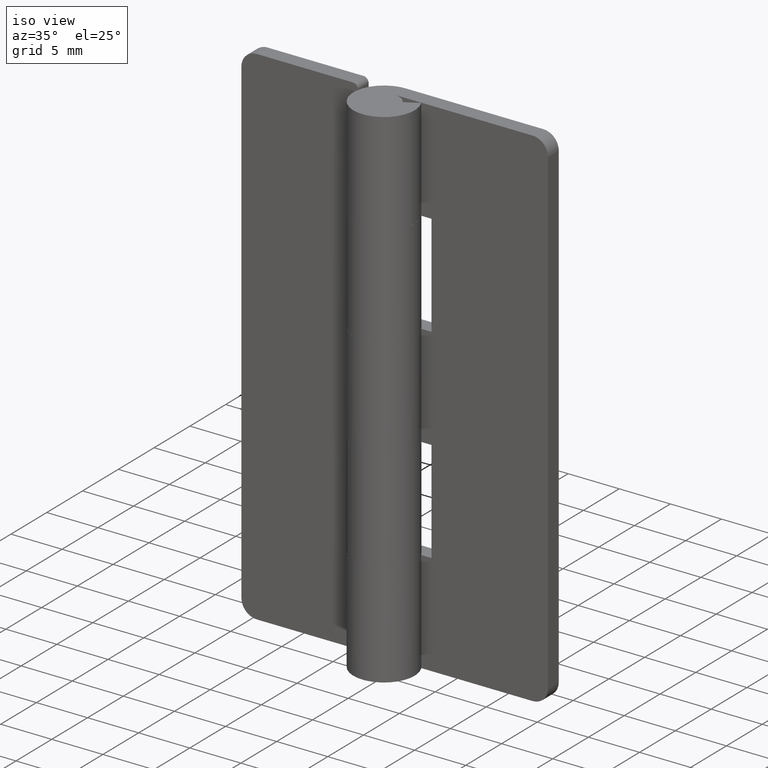
[diagram: clean part render]
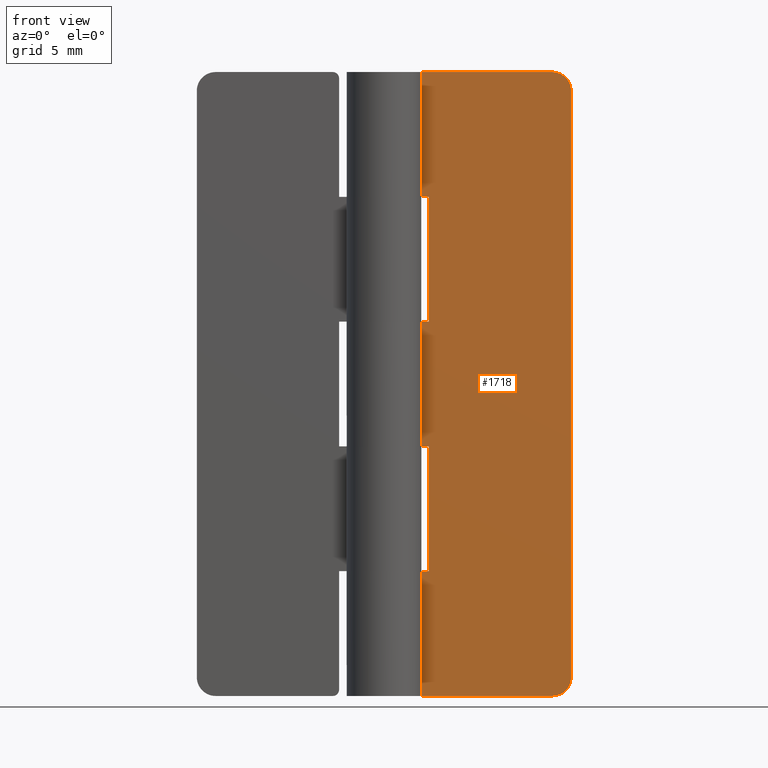
[diagram: tour spotlight — one face highlighted and labeled with its STEP entity id]
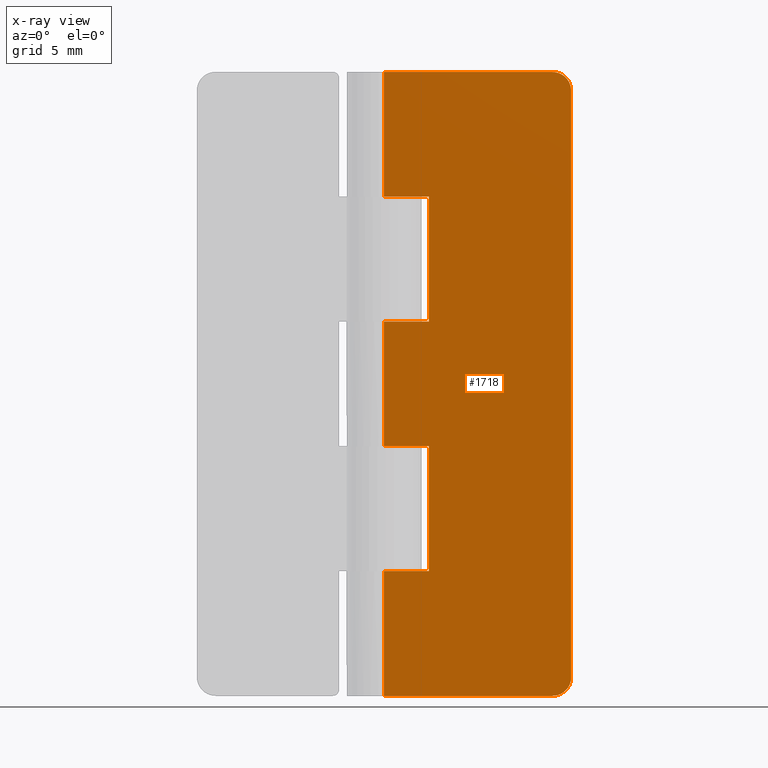
[diagram: x-ray of the same camera — body ghosted, this tour face saturated]
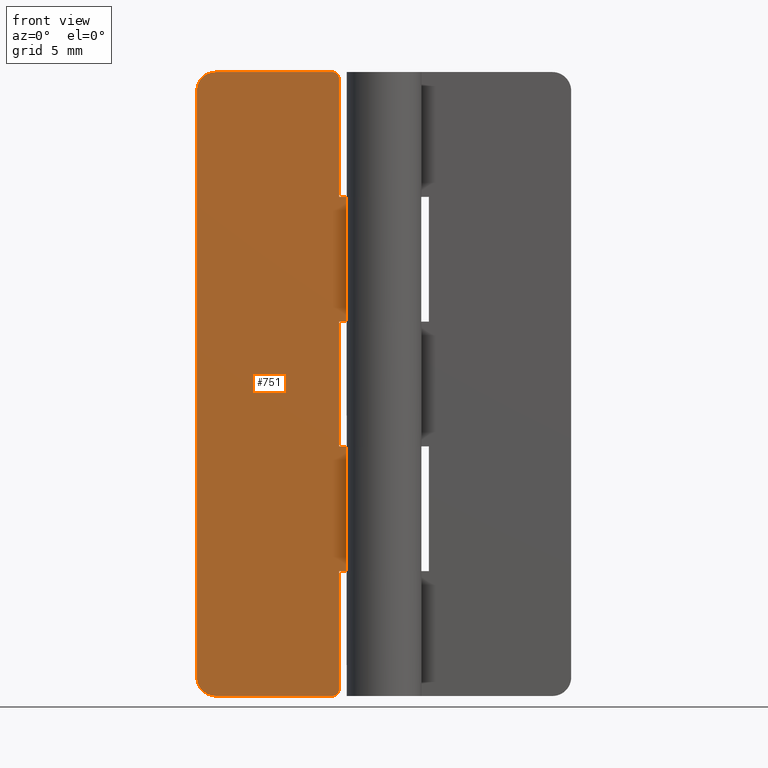
[diagram: tour spotlight — one face highlighted and labeled with its STEP entity id]
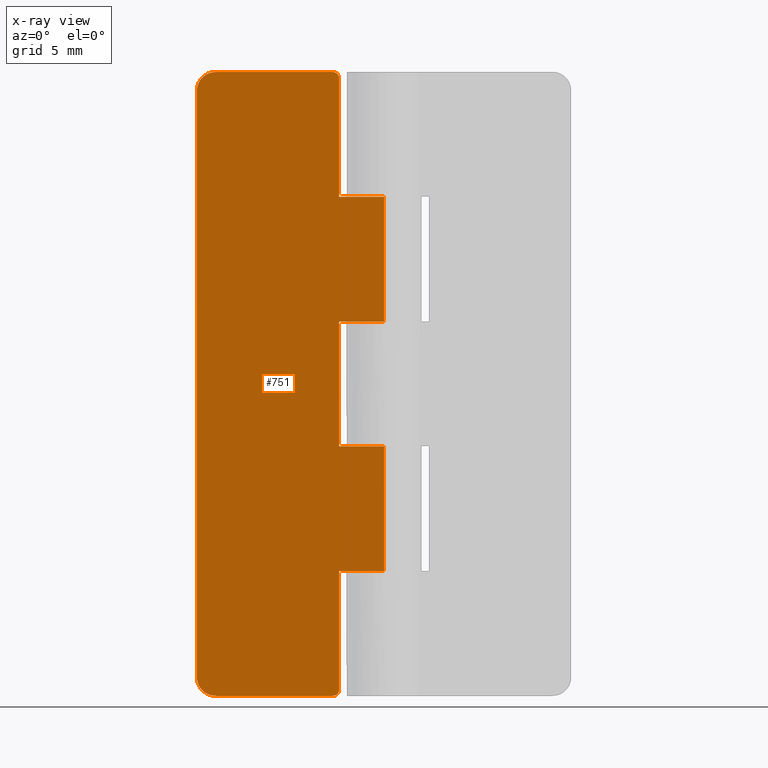
[diagram: x-ray of the same camera — body ghosted, this tour face saturated]
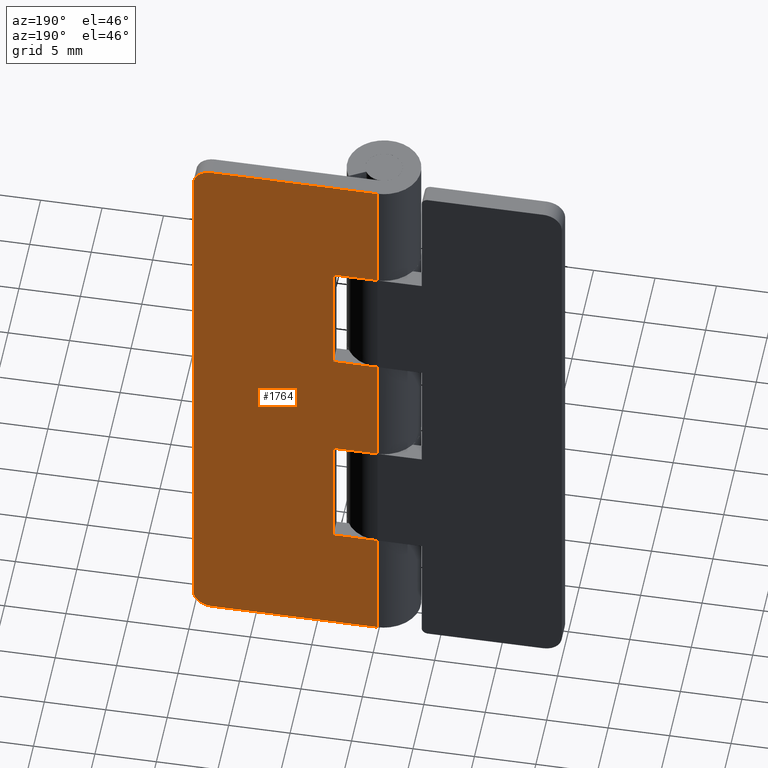
[diagram: tour spotlight — one face highlighted and labeled with its STEP entity id]
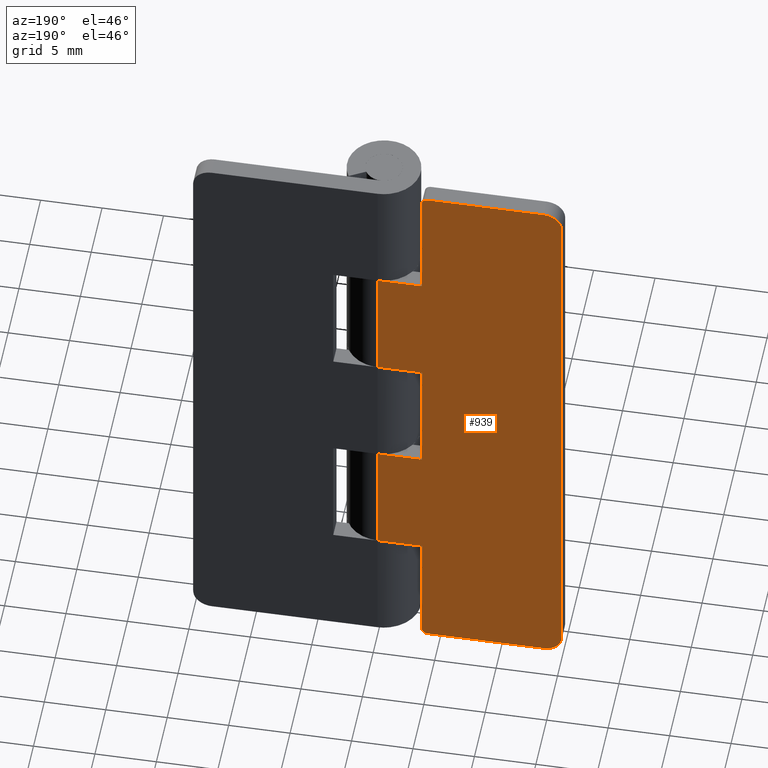
[diagram: tour spotlight — one face highlighted and labeled with its STEP entity id]
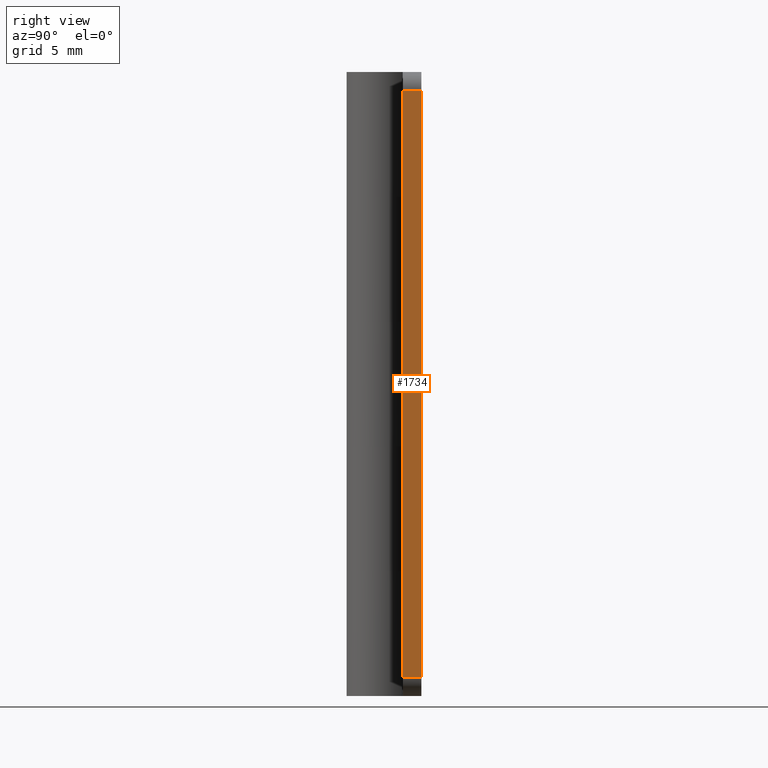
[diagram: tour spotlight — one face highlighted and labeled with its STEP entity id]
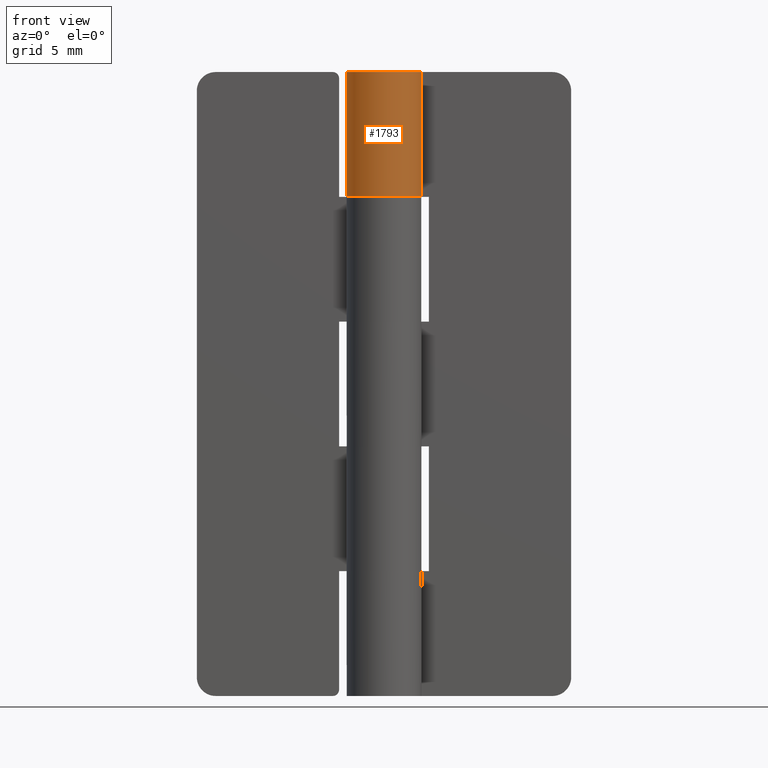
[diagram: tour spotlight — one face highlighted and labeled with its STEP entity id]
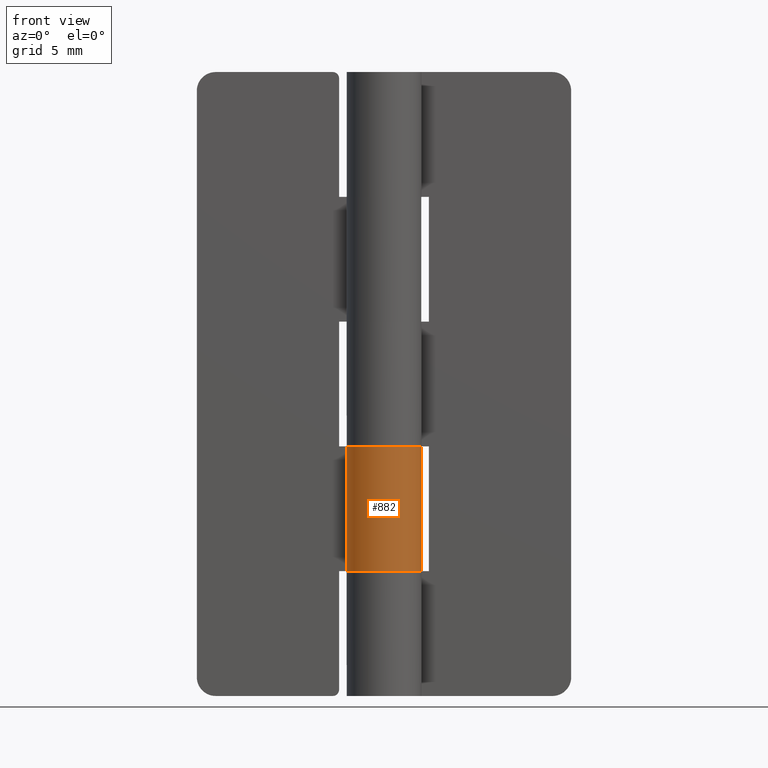
[diagram: tour spotlight — one face highlighted and labeled with its STEP entity id]
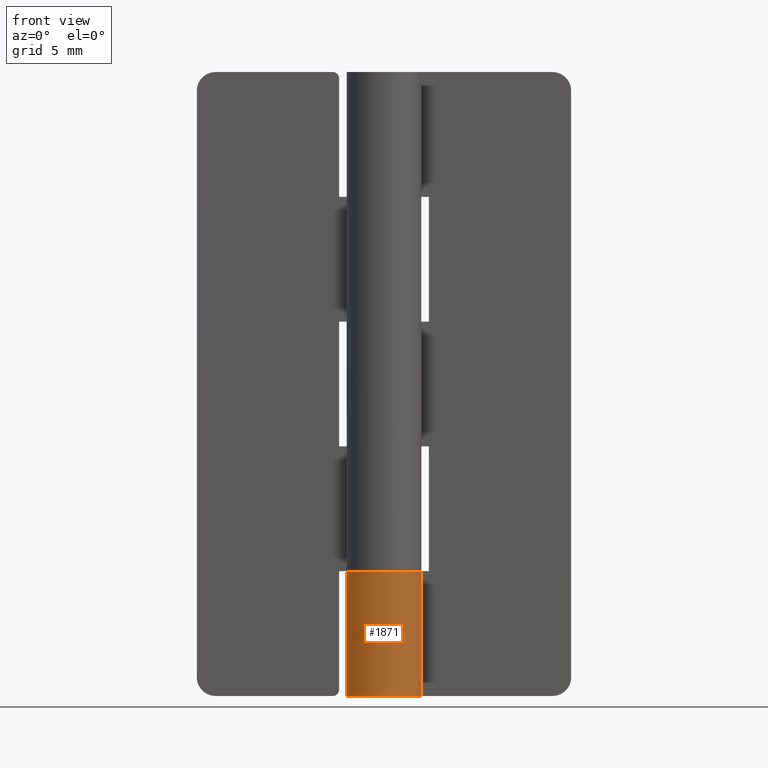
[diagram: tour spotlight — one face highlighted and labeled with its STEP entity id]
A machine part: a face-by-face anatomy tour. The part has 48 B-rep faces; the first image is the clean iso view, then the 8 largest visible faces are spotlighted one at a time (largest first), each with its STEP entity span.

Face 1 — front view, entity #1718. An x-ray twin of the same camera follows (body ghosted, this face saturated) — the face is partly hidden behind the body. In plain terms, the highlighted face is a freeform B-spline surface patch.
Definition (entity closure, byte-faithful):
#1012=CARTESIAN_POINT('',(13.500000000000000,1.500000000000000,50.0));
#1013=VERTEX_POINT('',#1012);
#1019=CARTESIAN_POINT('',(15.0,1.500000000000000,48.500000000000000));
#1020=VERTEX_POINT('',#1019);
#1021=CARTESIAN_POINT('',(15.0,1.500000000000000,48.500000000000000));
#1022=CARTESIAN_POINT('',(14.999999999999995,1.500000000000000,50.0));
#1023=CARTESIAN_POINT('',(13.500000000000000,1.500000000000000,50.0));
#1031=(BOUNDED_CURVE()B_SPLINE_CURVE(2,(#1021,#1022,#1023),.UNSPECIFIED.,.F.,.U.)CURVE()GEOMETRIC_REPRESENTATION_ITEM()QUASI_UNIFORM_CURVE()RATIONAL_B_SPLINE_CURVE((1.0,0.707106781186548,1.0))REPRESENTATION_ITEM(''));
#1032=EDGE_CURVE('',#1020,#1013,#1031,.T.);
#1073=CARTESIAN_POINT('',(15.0,1.500000000000000,1.499999999999946));
#1074=VERTEX_POINT('',#1073);
#1080=CARTESIAN_POINT('',(13.500000000000000,1.500000000000000,0.0));
#1081=VERTEX_POINT('',#1080);
#1082=CARTESIAN_POINT('',(13.500000000000000,1.500000000000000,0.0));
#1083=CARTESIAN_POINT('',(14.999999999999995,1.500000000000000,0.0));
#1084=CARTESIAN_POINT('',(15.0,1.500000000000000,1.499999999999946));
#1092=(BOUNDED_CURVE()B_SPLINE_CURVE(2,(#1082,#1083,#1084),.UNSPECIFIED.,.F.,.U.)CURVE()GEOMETRIC_REPRESENTATION_ITEM()QUASI_UNIFORM_CURVE()RATIONAL_B_SPLINE_CURVE((1.0,0.707106781186548,1.0))REPRESENTATION_ITEM(''));
#1093=EDGE_CURVE('',#1081,#1074,#1092,.T.);
#1108=CARTESIAN_POINT('',(0.0,1.500000000000000,10.0));
#1109=VERTEX_POINT('',#1108);
#1110=CARTESIAN_POINT('',(3.599998000000000,1.499999999999946,10.0));
#1111=VERTEX_POINT('',#1110);
#1112=CARTESIAN_POINT('',(0.0,1.500000000000000,10.0));
#1113=CARTESIAN_POINT('',(3.599998000000000,1.499999999999946,10.0));
#1114=QUASI_UNIFORM_CURVE('',1,(#1112,#1113),.UNSPECIFIED.,.F.,.U.);
#1115=EDGE_CURVE('',#1109,#1111,#1114,.T.);
#1186=CARTESIAN_POINT('',(3.599998000000000,1.499999999999946,20.0));
#1187=VERTEX_POINT('',#1186);
#1188=CARTESIAN_POINT('',(0.0,1.500000000000000,20.0));
#1189=VERTEX_POINT('',#1188);
#1190=CARTESIAN_POINT('',(3.599998000000000,1.499999999999946,20.0));
#1191=CARTESIAN_POINT('',(0.0,1.500000000000000,20.0));
#1192=QUASI_UNIFORM_CURVE('',1,(#1190,#1191),.UNSPECIFIED.,.F.,.U.);
#1193=EDGE_CURVE('',#1187,#1189,#1192,.T.);
#1264=CARTESIAN_POINT('',(3.599998000000000,1.499999999999946,10.0));
#1265=CARTESIAN_POINT('',(3.599998000000000,1.499999999999946,20.0));
#1266=QUASI_UNIFORM_CURVE('',1,(#1264,#1265),.UNSPECIFIED.,.F.,.U.);
#1267=EDGE_CURVE('',#1111,#1187,#1266,.T.);
#1284=CARTESIAN_POINT('',(3.599998000000000,1.499999999999946,40.0));
#1285=VERTEX_POINT('',#1284);
#1286=CARTESIAN_POINT('',(0.0,1.500000000000000,40.0));
#1287=VERTEX_POINT('',#1286);
#1288=CARTESIAN_POINT('',(3.599998000000000,1.499999999999946,40.0));
#1289=CARTESIAN_POINT('',(0.0,1.500000000000000,40.0));
#1290=QUASI_UNIFORM_CURVE('',1,(#1288,#1289),.UNSPECIFIED.,.F.,.U.);
#1291=EDGE_CURVE('',#1285,#1287,#1290,.T.);
#1362=CARTESIAN_POINT('',(0.0,1.500000000000000,30.0));
#1363=VERTEX_POINT('',#1362);
#1364=CARTESIAN_POINT('',(3.599998000000000,1.499999999999946,30.0));
#1365=VERTEX_POINT('',#1364);
#1366=CARTESIAN_POINT('',(0.0,1.500000000000000,30.0));
#1367=CARTESIAN_POINT('',(3.599998000000000,1.499999999999946,30.0));
#1368=QUASI_UNIFORM_CURVE('',1,(#1366,#1367),.UNSPECIFIED.,.F.,.U.);
#1369=EDGE_CURVE('',#1363,#1365,#1368,.T.);
#1440=CARTESIAN_POINT('',(3.599998000000000,1.499999999999946,30.0));
#1441=CARTESIAN_POINT('',(3.599998000000000,1.499999999999946,40.0));
#1442=QUASI_UNIFORM_CURVE('',1,(#1440,#1441),.UNSPECIFIED.,.F.,.U.);
#1443=EDGE_CURVE('',#1365,#1285,#1442,.T.);
#1468=CARTESIAN_POINT('',(0.0,1.500000000000000,0.0));
#1469=VERTEX_POINT('',#1468);
#1470=CARTESIAN_POINT('',(13.500000000000000,1.500000000000000,0.0));
#1471=CARTESIAN_POINT('',(0.0,1.500000000000000,0.0));
#1472=QUASI_UNIFORM_CURVE('',1,(#1470,#1471),.UNSPECIFIED.,.F.,.U.);
#1473=EDGE_CURVE('',#1081,#1469,#1472,.T.);
#1530=CARTESIAN_POINT('',(0.0,1.500000000000000,50.0));
#1531=VERTEX_POINT('',#1530);
#1532=CARTESIAN_POINT('',(13.500000000000000,1.500000000000000,50.0));
#1533=CARTESIAN_POINT('',(0.0,1.500000000000000,50.0));
#1534=QUASI_UNIFORM_CURVE('',1,(#1532,#1533),.UNSPECIFIED.,.F.,.U.);
#1535=EDGE_CURVE('',#1013,#1531,#1534,.T.);
#1676=CARTESIAN_POINT('',(0.0,1.500000000000000,50.0));
#1677=CARTESIAN_POINT('',(0.0,1.500000000000000,40.0));
#1678=QUASI_UNIFORM_CURVE('',1,(#1676,#1677),.UNSPECIFIED.,.F.,.U.);
#1679=EDGE_CURVE('',#1531,#1287,#1678,.T.);
#1685=CARTESIAN_POINT('',(-0.749249970927090,1.500000000000000,52.497499903090286));
#1686=CARTESIAN_POINT('',(-0.749249970927090,1.500000000000000,-2.497501244194806));
#1687=CARTESIAN_POINT('',(15.749250373258439,1.500000000000000,52.497499903090301));
#1688=CARTESIAN_POINT('',(15.749250373258439,1.500000000000000,-2.497501244194806));
#1689=B_SPLINE_SURFACE_WITH_KNOTS('',1,1,((#1685,#1687),(#1686,#1688)),.UNSPECIFIED.,.F.,.F.,.U.,(2,2),(2,2),(0.0,54.995001147285109),(0.0,16.498500344185530),.UNSPECIFIED.);
#1690=ORIENTED_EDGE('',*,*,#1473,.F.);
#1691=ORIENTED_EDGE('',*,*,#1093,.T.);
#1692=CARTESIAN_POINT('',(15.0,1.500000000000000,48.500000000000000));
#1693=CARTESIAN_POINT('',(15.0,1.500000000000000,1.499999999999946));
#1694=QUASI_UNIFORM_CURVE('',1,(#1692,#1693),.UNSPECIFIED.,.F.,.U.);
#1695=EDGE_CURVE('',#1020,#1074,#1694,.T.);
#1696=ORIENTED_EDGE('',*,*,#1695,.F.);
#1697=ORIENTED_EDGE('',*,*,#1032,.T.);
#1698=ORIENTED_EDGE('',*,*,#1535,.T.);
#1699=ORIENTED_EDGE('',*,*,#1679,.T.);
#1700=ORIENTED_EDGE('',*,*,#1291,.F.);
#1701=ORIENTED_EDGE('',*,*,#1443,.F.);
#1702=ORIENTED_EDGE('',*,*,#1369,.F.);
#1703=CARTESIAN_POINT('',(0.0,1.500000000000000,30.0));
#1704=CARTESIAN_POINT('',(0.0,1.500000000000000,20.0));
#1705=QUASI_UNIFORM_CURVE('',1,(#1703,#1704),.UNSPECIFIED.,.F.,.U.);
#1706=EDGE_CURVE('',#1363,#1189,#1705,.T.);
#1707=ORIENTED_EDGE('',*,*,#1706,.T.);
#1708=ORIENTED_EDGE('',*,*,#1193,.F.);
#1709=ORIENTED_EDGE('',*,*,#1267,.F.);
#1710=ORIENTED_EDGE('',*,*,#1115,.F.);
#1711=CARTESIAN_POINT('',(0.0,1.500000000000000,10.0));
#1712=CARTESIAN_POINT('',(0.0,1.500000000000000,0.0));
#1713=QUASI_UNIFORM_CURVE('',1,(#1711,#1712),.UNSPECIFIED.,.F.,.U.);
#1714=EDGE_CURVE('',#1109,#1469,#1713,.T.);
#1715=ORIENTED_EDGE('',*,*,#1714,.T.);
#1716=EDGE_LOOP('',(#1690,#1691,#1696,#1697,#1698,#1699,#1700,#1701,#1702,#1707,#1708,#1709,#1710,#1715));
#1717=FACE_OUTER_BOUND('',#1716,.T.);
#1718=ADVANCED_FACE('',(#1717),#1689,.T.);

Face 2 — front view, entity #751. An x-ray twin of the same camera follows (body ghosted, this face saturated) — the face is partly hidden behind the body. In plain terms, the highlighted face is a freeform B-spline surface patch.
Definition (entity closure, byte-faithful):
#58=CARTESIAN_POINT('',(-3.599998000000000,1.500000000000000,49.500000000000000));
#59=VERTEX_POINT('',#58);
#60=CARTESIAN_POINT('',(-4.099997999999999,1.500000000000000,50.0));
#61=VERTEX_POINT('',#60);
#62=CARTESIAN_POINT('',(-3.599998000000000,1.500000000000000,49.500000000000000));
#63=CARTESIAN_POINT('',(-3.599997999999999,1.500000000000000,50.0));
#64=CARTESIAN_POINT('',(-4.099997999999999,1.500000000000000,50.0));
#72=(BOUNDED_CURVE()B_SPLINE_CURVE(2,(#62,#63,#64),.UNSPECIFIED.,.F.,.U.)CURVE()GEOMETRIC_REPRESENTATION_ITEM()QUASI_UNIFORM_CURVE()RATIONAL_B_SPLINE_CURVE((1.0,0.707106781186548,1.0))REPRESENTATION_ITEM(''));
#73=EDGE_CURVE('',#59,#61,#72,.T.);
#119=CARTESIAN_POINT('',(-4.099997999999999,1.500000000000000,0.0));
#120=VERTEX_POINT('',#119);
#121=CARTESIAN_POINT('',(-3.599998000000000,1.500000000000000,0.499999999999945));
#122=VERTEX_POINT('',#121);
#123=CARTESIAN_POINT('',(-4.099997999999999,1.500000000000000,0.0));
#124=CARTESIAN_POINT('',(-3.599998000000055,1.499999999999946,0.0));
#125=CARTESIAN_POINT('',(-3.599998000000000,1.500000000000000,0.499999999999945));
#133=(BOUNDED_CURVE()B_SPLINE_CURVE(2,(#123,#124,#125),.UNSPECIFIED.,.F.,.U.)CURVE()GEOMETRIC_REPRESENTATION_ITEM()QUASI_UNIFORM_CURVE()RATIONAL_B_SPLINE_CURVE((1.0,0.707106781186586,1.0))REPRESENTATION_ITEM(''));
#134=EDGE_CURVE('',#120,#122,#133,.T.);
#180=CARTESIAN_POINT('',(-13.500000000000000,1.500000000000000,50.0));
#181=VERTEX_POINT('',#180);
#182=CARTESIAN_POINT('',(-15.0,1.500000000000000,48.500000000000000));
#183=VERTEX_POINT('',#182);
#184=CARTESIAN_POINT('',(-13.500000000000000,1.500000000000000,50.0));
#185=CARTESIAN_POINT('',(-14.999999999999995,1.500000000000000,50.0));
#186=CARTESIAN_POINT('',(-15.0,1.500000000000000,48.500000000000000));
#194=(BOUNDED_CURVE()B_SPLINE_CURVE(2,(#184,#185,#186),.UNSPECIFIED.,.F.,.U.)CURVE()GEOMETRIC_REPRESENTATION_ITEM()QUASI_UNIFORM_CURVE()RATIONAL_B_SPLINE_CURVE((1.0,0.707106781186548,1.0))REPRESENTATION_ITEM(''));
#195=EDGE_CURVE('',#181,#183,#194,.T.);
#241=CARTESIAN_POINT('',(-15.0,1.500000000000000,1.499999999999946));
#242=VERTEX_POINT('',#241);
#243=CARTESIAN_POINT('',(-13.500000000000000,1.500000000000000,0.0));
#244=VERTEX_POINT('',#243);
#245=CARTESIAN_POINT('',(-15.0,1.500000000000000,1.500000000000000));
#246=CARTESIAN_POINT('',(-14.999999999999995,1.500000000000000,0.0));
#247=CARTESIAN_POINT('',(-13.500000000000000,1.500000000000000,0.0));
#255=(BOUNDED_CURVE()B_SPLINE_CURVE(2,(#245,#246,#247),.UNSPECIFIED.,.F.,.U.)CURVE()GEOMETRIC_REPRESENTATION_ITEM()QUASI_UNIFORM_CURVE()RATIONAL_B_SPLINE_CURVE((1.0,0.707106781186548,1.0))REPRESENTATION_ITEM(''));
#256=EDGE_CURVE('',#242,#244,#255,.T.);
#302=CARTESIAN_POINT('',(-3.599998000000000,1.500000000000000,20.0));
#303=VERTEX_POINT('',#302);
#309=CARTESIAN_POINT('',(-2.572694E-015,1.500000000000000,20.0));
#310=VERTEX_POINT('',#309);
#311=CARTESIAN_POINT('',(-2.572694E-015,1.500000000000000,20.0));
#312=CARTESIAN_POINT('',(-3.599998000000000,1.500000000000000,20.0));
#313=QUASI_UNIFORM_CURVE('',1,(#311,#312),.UNSPECIFIED.,.F.,.U.);
#314=EDGE_CURVE('',#310,#303,#313,.T.);
#379=CARTESIAN_POINT('',(-3.599998000000000,1.499999999999946,30.0));
#380=VERTEX_POINT('',#379);
#386=CARTESIAN_POINT('',(-3.599998000000000,1.500000000000000,20.0));
#387=CARTESIAN_POINT('',(-3.599998000000000,1.499999999999946,30.0));
#388=QUASI_UNIFORM_CURVE('',1,(#386,#387),.UNSPECIFIED.,.F.,.U.);
#389=EDGE_CURVE('',#303,#380,#388,.T.);
#429=CARTESIAN_POINT('',(-2.572694E-015,1.500000000000000,30.0));
#430=VERTEX_POINT('',#429);
#450=CARTESIAN_POINT('',(-3.599998000000000,1.499999999999946,30.0));
#451=CARTESIAN_POINT('',(-2.572694E-015,1.500000000000000,30.0));
#452=QUASI_UNIFORM_CURVE('',1,(#450,#451),.UNSPECIFIED.,.F.,.U.);
#453=EDGE_CURVE('',#380,#430,#452,.T.);
#469=CARTESIAN_POINT('',(-3.599998000000000,1.499999999999946,10.0));
#470=VERTEX_POINT('',#469);
#471=CARTESIAN_POINT('',(-3.599998000000000,1.499999999999946,10.0));
#472=CARTESIAN_POINT('',(-3.599998000000000,1.500000000000000,0.499999999999945));
#473=QUASI_UNIFORM_CURVE('',1,(#471,#472),.UNSPECIFIED.,.F.,.U.);
#474=EDGE_CURVE('',#470,#122,#473,.T.);
#527=CARTESIAN_POINT('',(-2.572694E-015,1.500000000000000,10.0));
#528=VERTEX_POINT('',#527);
#548=CARTESIAN_POINT('',(-2.572694E-015,1.500000000000000,10.0));
#549=CARTESIAN_POINT('',(-3.599998000000000,1.499999999999946,10.0));
#550=QUASI_UNIFORM_CURVE('',1,(#548,#549),.UNSPECIFIED.,.F.,.U.);
#551=EDGE_CURVE('',#528,#470,#550,.T.);
#575=CARTESIAN_POINT('',(-3.599998000000000,1.499999999999946,40.0));
#576=VERTEX_POINT('',#575);
#577=CARTESIAN_POINT('',(-3.599998000000000,1.500000000000000,49.500000000000000));
#578=CARTESIAN_POINT('',(-3.599998000000000,1.499999999999946,40.0));
#579=QUASI_UNIFORM_CURVE('',1,(#577,#578),.UNSPECIFIED.,.F.,.U.);
#580=EDGE_CURVE('',#59,#576,#579,.T.);
#624=CARTESIAN_POINT('',(-2.572694E-015,1.500000000000000,40.0));
#625=VERTEX_POINT('',#624);
#626=CARTESIAN_POINT('',(-3.599998000000000,1.499999999999946,40.0));
#627=CARTESIAN_POINT('',(-2.572694E-015,1.500000000000000,40.0));
#628=QUASI_UNIFORM_CURVE('',1,(#626,#627),.UNSPECIFIED.,.F.,.U.);
#629=EDGE_CURVE('',#576,#625,#628,.T.);
#671=CARTESIAN_POINT('',(-4.099997999999999,1.500000000000000,0.0));
#672=CARTESIAN_POINT('',(-13.500000000000000,1.500000000000000,0.0));
#673=QUASI_UNIFORM_CURVE('',1,(#671,#672),.UNSPECIFIED.,.F.,.U.);
#674=EDGE_CURVE('',#120,#244,#673,.T.);
#685=CARTESIAN_POINT('',(-4.099997999999999,1.500000000000000,50.0));
#686=CARTESIAN_POINT('',(-13.500000000000000,1.500000000000000,50.0));
#687=QUASI_UNIFORM_CURVE('',1,(#685,#686),.UNSPECIFIED.,.F.,.U.);
#688=EDGE_CURVE('',#61,#181,#687,.T.);
#711=CARTESIAN_POINT('',(-15.0,1.500000000000000,48.500000000000000));
#712=CARTESIAN_POINT('',(-15.0,1.500000000000000,1.499999999999946));
#713=QUASI_UNIFORM_CURVE('',1,(#711,#712),.UNSPECIFIED.,.F.,.U.);
#714=EDGE_CURVE('',#183,#242,#713,.T.);
#720=CARTESIAN_POINT('',(-15.749249970927091,1.500000000000000,52.497499903090286));
#721=CARTESIAN_POINT('',(-15.749249970927091,1.500000000000000,-2.497501244194806));
#722=CARTESIAN_POINT('',(0.749250373258439,1.500000000000000,52.497499903090301));
#723=CARTESIAN_POINT('',(0.749250373258439,1.500000000000000,-2.497501244194806));
#724=B_SPLINE_SURFACE_WITH_KNOTS('',1,1,((#720,#722),(#721,#723)),.UNSPECIFIED.,.F.,.F.,.U.,(2,2),(2,2),(0.0,54.995001147285109),(0.0,16.498500344185530),.UNSPECIFIED.);
#725=ORIENTED_EDGE('',*,*,#674,.F.);
#726=ORIENTED_EDGE('',*,*,#134,.T.);
#727=ORIENTED_EDGE('',*,*,#474,.F.);
#728=ORIENTED_EDGE('',*,*,#551,.F.);
#729=CARTESIAN_POINT('',(-2.572694E-015,1.500000000000000,20.0));
#730=CARTESIAN_POINT('',(-2.572694E-015,1.500000000000000,10.0));
#731=QUASI_UNIFORM_CURVE('',1,(#729,#730),.UNSPECIFIED.,.F.,.U.);
#732=EDGE_CURVE('',#310,#528,#731,.T.);
#733=ORIENTED_EDGE('',*,*,#732,.F.);
#734=ORIENTED_EDGE('',*,*,#314,.T.);
#735=ORIENTED_EDGE('',*,*,#389,.T.);
#736=ORIENTED_EDGE('',*,*,#453,.T.);
#737=CARTESIAN_POINT('',(-2.572694E-015,1.500000000000000,40.0));
#738=CARTESIAN_POINT('',(-2.572694E-015,1.500000000000000,30.0));
#739=QUASI_UNIFORM_CURVE('',1,(#737,#738),.UNSPECIFIED.,.F.,.U.);
#740=EDGE_CURVE('',#625,#430,#739,.T.);
#741=ORIENTED_EDGE('',*,*,#740,.F.);
#742=ORIENTED_EDGE('',*,*,#629,.F.);
#743=ORIENTED_EDGE('',*,*,#580,.F.);
#744=ORIENTED_EDGE('',*,*,#73,.T.);
#745=ORIENTED_EDGE('',*,*,#688,.T.);
#746=ORIENTED_EDGE('',*,*,#195,.T.);
#747=ORIENTED_EDGE('',*,*,#714,.T.);
#748=ORIENTED_EDGE('',*,*,#256,.T.);
#749=EDGE_LOOP('',(#725,#726,#727,#728,#733,#734,#735,#736,#741,#742,#743,#744,#745,#746,#747,#748));
#750=FACE_OUTER_BOUND('',#749,.T.);
#751=ADVANCED_FACE('',(#750),#724,.T.);

Face 3 — auxiliary view, entity #1764. In plain terms, the highlighted face is a freeform B-spline surface patch.
Definition (entity closure, byte-faithful):
#995=CARTESIAN_POINT('',(13.500000000000000,3.0,50.0));
#996=VERTEX_POINT('',#995);
#997=CARTESIAN_POINT('',(15.0,3.0,48.500000000000000));
#998=VERTEX_POINT('',#997);
#999=CARTESIAN_POINT('',(13.500000000000000,3.0,50.0));
#1000=CARTESIAN_POINT('',(14.999999999999995,3.0,50.0));
#1001=CARTESIAN_POINT('',(15.0,3.0,48.500000000000000));
#1009=(BOUNDED_CURVE()B_SPLINE_CURVE(2,(#999,#1000,#1001),.UNSPECIFIED.,.F.,.U.)CURVE()GEOMETRIC_REPRESENTATION_ITEM()QUASI_UNIFORM_CURVE()RATIONAL_B_SPLINE_CURVE((1.0,0.707106781186548,1.0))REPRESENTATION_ITEM(''));
#1010=EDGE_CURVE('',#996,#998,#1009,.T.);
#1056=CARTESIAN_POINT('',(15.0,3.0,1.499999999999946));
#1057=VERTEX_POINT('',#1056);
#1058=CARTESIAN_POINT('',(13.500000000000000,3.0,0.0));
#1059=VERTEX_POINT('',#1058);
#1060=CARTESIAN_POINT('',(15.0,3.0,1.499999999999946));
#1061=CARTESIAN_POINT('',(14.999999999999995,3.0,0.0));
#1062=CARTESIAN_POINT('',(13.500000000000000,3.0,0.0));
#1070=(BOUNDED_CURVE()B_SPLINE_CURVE(2,(#1060,#1061,#1062),.UNSPECIFIED.,.F.,.U.)CURVE()GEOMETRIC_REPRESENTATION_ITEM()QUASI_UNIFORM_CURVE()RATIONAL_B_SPLINE_CURVE((1.0,0.707106781186548,1.0))REPRESENTATION_ITEM(''));
#1071=EDGE_CURVE('',#1057,#1059,#1070,.T.);
#1117=CARTESIAN_POINT('',(3.599998000000000,3.0,10.0));
#1118=VERTEX_POINT('',#1117);
#1124=CARTESIAN_POINT('',(-5.510729E-016,3.0,10.0));
#1125=VERTEX_POINT('',#1124);
#1126=CARTESIAN_POINT('',(-5.510729E-016,3.0,10.0));
#1127=CARTESIAN_POINT('',(3.599998000000000,3.0,10.0));
#1128=QUASI_UNIFORM_CURVE('',1,(#1126,#1127),.UNSPECIFIED.,.F.,.U.);
#1129=EDGE_CURVE('',#1125,#1118,#1128,.T.);
#1223=CARTESIAN_POINT('',(0.0,3.0,20.0));
#1224=VERTEX_POINT('',#1223);
#1244=CARTESIAN_POINT('',(3.599998000000000,3.0,20.0));
#1245=VERTEX_POINT('',#1244);
#1246=CARTESIAN_POINT('',(3.599998000000000,3.0,20.0));
#1247=CARTESIAN_POINT('',(0.0,3.0,20.0));
#1248=QUASI_UNIFORM_CURVE('',1,(#1246,#1247),.UNSPECIFIED.,.F.,.U.);
#1249=EDGE_CURVE('',#1245,#1224,#1248,.T.);
#1270=CARTESIAN_POINT('',(3.599998000000000,3.0,10.0));
#1271=CARTESIAN_POINT('',(3.599998000000000,3.0,20.0));
#1272=QUASI_UNIFORM_CURVE('',1,(#1270,#1271),.UNSPECIFIED.,.F.,.U.);
#1273=EDGE_CURVE('',#1118,#1245,#1272,.T.);
#1321=CARTESIAN_POINT('',(0.0,3.0,40.0));
#1322=VERTEX_POINT('',#1321);
#1342=CARTESIAN_POINT('',(3.599998000000000,3.0,40.0));
#1343=VERTEX_POINT('',#1342);
#1344=CARTESIAN_POINT('',(0.0,3.0,40.0));
#1345=CARTESIAN_POINT('',(3.599998000000000,3.0,40.0));
#1346=QUASI_UNIFORM_CURVE('',1,(#1344,#1345),.UNSPECIFIED.,.F.,.U.);
#1347=EDGE_CURVE('',#1322,#1343,#1346,.T.);
#1371=CARTESIAN_POINT('',(3.599998000000000,3.0,30.0));
#1372=VERTEX_POINT('',#1371);
#1378=CARTESIAN_POINT('',(0.0,3.0,30.0));
#1379=VERTEX_POINT('',#1378);
#1380=CARTESIAN_POINT('',(3.599998000000000,3.0,30.0));
#1381=CARTESIAN_POINT('',(0.0,3.0,30.0));
#1382=QUASI_UNIFORM_CURVE('',1,(#1380,#1381),.UNSPECIFIED.,.F.,.U.);
#1383=EDGE_CURVE('',#1372,#1379,#1382,.T.);
#1446=CARTESIAN_POINT('',(3.599998000000000,3.0,40.0));
#1447=CARTESIAN_POINT('',(3.599998000000000,3.0,30.0));
#1448=QUASI_UNIFORM_CURVE('',1,(#1446,#1447),.UNSPECIFIED.,.F.,.U.);
#1449=EDGE_CURVE('',#1343,#1372,#1448,.T.);
#1460=CARTESIAN_POINT('',(-5.510729E-016,3.0,0.0));
#1461=VERTEX_POINT('',#1460);
#1462=CARTESIAN_POINT('',(-5.510729E-016,3.0,0.0));
#1463=CARTESIAN_POINT('',(13.500000000000000,3.0,0.0));
#1464=QUASI_UNIFORM_CURVE('',1,(#1462,#1463),.UNSPECIFIED.,.F.,.U.);
#1465=EDGE_CURVE('',#1461,#1059,#1464,.T.);
#1538=CARTESIAN_POINT('',(-5.510729E-016,3.0,50.0));
#1539=VERTEX_POINT('',#1538);
#1540=CARTESIAN_POINT('',(-5.510729E-016,3.0,50.0));
#1541=CARTESIAN_POINT('',(13.500000000000000,3.0,50.0));
#1542=QUASI_UNIFORM_CURVE('',1,(#1540,#1541),.UNSPECIFIED.,.F.,.U.);
#1543=EDGE_CURVE('',#1539,#996,#1542,.T.);
#1617=CARTESIAN_POINT('',(0.0,3.0,30.0));
#1618=CARTESIAN_POINT('',(0.0,3.0,20.0));
#1619=QUASI_UNIFORM_CURVE('',1,(#1617,#1618),.UNSPECIFIED.,.F.,.U.);
#1620=EDGE_CURVE('',#1379,#1224,#1619,.T.);
#1726=CARTESIAN_POINT('',(15.0,3.0,48.500000000000000));
#1727=CARTESIAN_POINT('',(15.0,3.0,1.499999999999946));
#1728=QUASI_UNIFORM_CURVE('',1,(#1726,#1727),.UNSPECIFIED.,.F.,.U.);
#1729=EDGE_CURVE('',#998,#1057,#1728,.T.);
#1735=CARTESIAN_POINT('',(-0.749249970927090,3.0,-2.497499903090299));
#1736=CARTESIAN_POINT('',(-0.749249970927090,3.0,52.497501244194808));
#1737=CARTESIAN_POINT('',(15.749250373258439,3.0,-2.497499903090299));
#1738=CARTESIAN_POINT('',(15.749250373258439,3.0,52.497501244194808));
#1739=B_SPLINE_SURFACE_WITH_KNOTS('',1,1,((#1735,#1737),(#1736,#1738)),.UNSPECIFIED.,.F.,.F.,.U.,(2,2),(2,2),(0.0,54.995001147285109),(0.0,16.498500344185530),.UNSPECIFIED.);
#1740=ORIENTED_EDGE('',*,*,#1729,.T.);
#1741=ORIENTED_EDGE('',*,*,#1071,.T.);
#1742=ORIENTED_EDGE('',*,*,#1465,.F.);
#1743=CARTESIAN_POINT('',(-5.510729E-016,3.0,10.0));
#1744=CARTESIAN_POINT('',(-5.510729E-016,3.0,0.0));
#1745=QUASI_UNIFORM_CURVE('',1,(#1743,#1744),.UNSPECIFIED.,.F.,.U.);
#1746=EDGE_CURVE('',#1125,#1461,#1745,.T.);
#1747=ORIENTED_EDGE('',*,*,#1746,.F.);
#1748=ORIENTED_EDGE('',*,*,#1129,.T.);
#1749=ORIENTED_EDGE('',*,*,#1273,.T.);
#1750=ORIENTED_EDGE('',*,*,#1249,.T.);
#1751=ORIENTED_EDGE('',*,*,#1620,.F.);
#1752=ORIENTED_EDGE('',*,*,#1383,.F.);
#1753=ORIENTED_EDGE('',*,*,#1449,.F.);
#1754=ORIENTED_EDGE('',*,*,#1347,.F.);
#1755=CARTESIAN_POINT('',(-5.510729E-016,3.0,50.0));
#1756=CARTESIAN_POINT('',(0.0,3.0,40.0));
#1757=QUASI_UNIFORM_CURVE('',1,(#1755,#1756),.UNSPECIFIED.,.F.,.U.);
#1758=EDGE_CURVE('',#1539,#1322,#1757,.T.);
#1759=ORIENTED_EDGE('',*,*,#1758,.F.);
#1760=ORIENTED_EDGE('',*,*,#1543,.T.);
#1761=ORIENTED_EDGE('',*,*,#1010,.T.);
#1762=EDGE_LOOP('',(#1740,#1741,#1742,#1747,#1748,#1749,#1750,#1751,#1752,#1753,#1754,#1759,#1760,#1761));
#1763=FACE_OUTER_BOUND('',#1762,.T.);
#1764=ADVANCED_FACE('',(#1763),#1739,.T.);

Face 4 — auxiliary view, entity #939. In plain terms, the highlighted face is a freeform B-spline surface patch.
Definition (entity closure, byte-faithful):
#75=CARTESIAN_POINT('',(-3.599998000000000,3.0,49.500000000000000));
#76=VERTEX_POINT('',#75);
#82=CARTESIAN_POINT('',(-4.099997999999999,3.0,50.0));
#83=VERTEX_POINT('',#82);
#84=CARTESIAN_POINT('',(-4.099997999999999,3.0,50.0));
#85=CARTESIAN_POINT('',(-3.599997999999999,3.0,50.0));
#86=CARTESIAN_POINT('',(-3.599998000000000,3.0,49.500000000000000));
#94=(BOUNDED_CURVE()B_SPLINE_CURVE(2,(#84,#85,#86),.UNSPECIFIED.,.F.,.U.)CURVE()GEOMETRIC_REPRESENTATION_ITEM()QUASI_UNIFORM_CURVE()RATIONAL_B_SPLINE_CURVE((1.0,0.707106781186548,1.0))REPRESENTATION_ITEM(''));
#95=EDGE_CURVE('',#83,#76,#94,.T.);
#136=CARTESIAN_POINT('',(-4.099997999999999,3.0,0.0));
#137=VERTEX_POINT('',#136);
#143=CARTESIAN_POINT('',(-3.599998000000000,3.0,0.500000000000000));
#144=VERTEX_POINT('',#143);
#145=CARTESIAN_POINT('',(-3.599998000000000,3.0,0.500000000000000));
#146=CARTESIAN_POINT('',(-3.599997999999999,3.0,0.0));
#147=CARTESIAN_POINT('',(-4.099997999999999,3.0,0.0));
#155=(BOUNDED_CURVE()B_SPLINE_CURVE(2,(#145,#146,#147),.UNSPECIFIED.,.F.,.U.)CURVE()GEOMETRIC_REPRESENTATION_ITEM()QUASI_UNIFORM_CURVE()RATIONAL_B_SPLINE_CURVE((1.0,0.707106781186548,1.0))REPRESENTATION_ITEM(''));
#156=EDGE_CURVE('',#144,#137,#155,.T.);
#197=CARTESIAN_POINT('',(-13.500000000000000,3.0,50.0));
#198=VERTEX_POINT('',#197);
#204=CARTESIAN_POINT('',(-15.0,3.0,48.500000000000000));
#205=VERTEX_POINT('',#204);
#206=CARTESIAN_POINT('',(-15.0,3.0,48.500000000000000));
#207=CARTESIAN_POINT('',(-14.999999999999995,3.0,50.0));
#208=CARTESIAN_POINT('',(-13.500000000000000,3.0,50.0));
#216=(BOUNDED_CURVE()B_SPLINE_CURVE(2,(#206,#207,#208),.UNSPECIFIED.,.F.,.U.)CURVE()GEOMETRIC_REPRESENTATION_ITEM()QUASI_UNIFORM_CURVE()RATIONAL_B_SPLINE_CURVE((1.0,0.707106781186548,1.0))REPRESENTATION_ITEM(''));
#217=EDGE_CURVE('',#205,#198,#216,.T.);
#258=CARTESIAN_POINT('',(-15.0,3.0,1.499999999999946));
#259=VERTEX_POINT('',#258);
#265=CARTESIAN_POINT('',(-13.500000000000000,3.0,0.0));
#266=VERTEX_POINT('',#265);
#267=CARTESIAN_POINT('',(-13.500000000000000,3.0,0.0));
#268=CARTESIAN_POINT('',(-14.999999999999995,3.0,0.0));
#269=CARTESIAN_POINT('',(-15.0,3.0,1.500000000000000));
#277=(BOUNDED_CURVE()B_SPLINE_CURVE(2,(#267,#268,#269),.UNSPECIFIED.,.F.,.U.)CURVE()GEOMETRIC_REPRESENTATION_ITEM()QUASI_UNIFORM_CURVE()RATIONAL_B_SPLINE_CURVE((1.0,0.707106781186548,1.0))REPRESENTATION_ITEM(''));
#278=EDGE_CURVE('',#266,#259,#277,.T.);
#293=CARTESIAN_POINT('',(-3.599998000000000,3.0,20.0));
#294=VERTEX_POINT('',#293);
#295=CARTESIAN_POINT('',(0.0,3.0,20.0));
#296=VERTEX_POINT('',#295);
#297=CARTESIAN_POINT('',(-3.599998000000000,3.0,20.0));
#298=CARTESIAN_POINT('',(0.0,3.0,20.0));
#299=QUASI_UNIFORM_CURVE('',1,(#297,#298),.UNSPECIFIED.,.F.,.U.);
#300=EDGE_CURVE('',#294,#296,#299,.T.);
#372=CARTESIAN_POINT('',(-3.599998000000000,3.0,30.0));
#373=VERTEX_POINT('',#372);
#374=CARTESIAN_POINT('',(-3.599998000000000,3.0,30.0));
#375=CARTESIAN_POINT('',(-3.599998000000000,3.0,20.0));
#376=QUASI_UNIFORM_CURVE('',1,(#374,#375),.UNSPECIFIED.,.F.,.U.);
#377=EDGE_CURVE('',#373,#294,#376,.T.);
#401=CARTESIAN_POINT('',(0.0,3.0,30.0));
#402=VERTEX_POINT('',#401);
#456=CARTESIAN_POINT('',(0.0,3.0,30.0));
#457=CARTESIAN_POINT('',(-3.599998000000000,3.0,30.0));
#458=QUASI_UNIFORM_CURVE('',1,(#456,#457),.UNSPECIFIED.,.F.,.U.);
#459=EDGE_CURVE('',#402,#373,#458,.T.);
#477=CARTESIAN_POINT('',(-3.599998000000000,3.0,10.0));
#478=VERTEX_POINT('',#477);
#479=CARTESIAN_POINT('',(-3.599998000000000,3.0,10.0));
#480=CARTESIAN_POINT('',(-3.599998000000000,3.0,0.500000000000000));
#481=QUASI_UNIFORM_CURVE('',1,(#479,#480),.UNSPECIFIED.,.F.,.U.);
#482=EDGE_CURVE('',#478,#144,#481,.T.);
#497=CARTESIAN_POINT('',(0.0,3.0,10.0));
#498=VERTEX_POINT('',#497);
#554=CARTESIAN_POINT('',(0.0,3.0,10.0));
#555=CARTESIAN_POINT('',(-3.599998000000000,3.0,10.0));
#556=QUASI_UNIFORM_CURVE('',1,(#554,#555),.UNSPECIFIED.,.F.,.U.);
#557=EDGE_CURVE('',#498,#478,#556,.T.);
#567=CARTESIAN_POINT('',(-3.599998000000000,3.0,40.0));
#568=VERTEX_POINT('',#567);
#569=CARTESIAN_POINT('',(-3.599998000000000,3.0,40.0));
#570=CARTESIAN_POINT('',(-3.599998000000000,3.0,49.500000000000000));
#571=QUASI_UNIFORM_CURVE('',1,(#569,#570),.UNSPECIFIED.,.F.,.U.);
#572=EDGE_CURVE('',#568,#76,#571,.T.);
#597=CARTESIAN_POINT('',(0.0,3.0,40.0));
#598=VERTEX_POINT('',#597);
#618=CARTESIAN_POINT('',(0.0,3.0,40.0));
#619=CARTESIAN_POINT('',(-3.599998000000000,3.0,40.0));
#620=QUASI_UNIFORM_CURVE('',1,(#618,#619),.UNSPECIFIED.,.F.,.U.);
#621=EDGE_CURVE('',#598,#568,#620,.T.);
#665=CARTESIAN_POINT('',(-13.500000000000000,3.0,0.0));
#666=CARTESIAN_POINT('',(-4.099997999999999,3.0,0.0));
#667=QUASI_UNIFORM_CURVE('',1,(#665,#666),.UNSPECIFIED.,.F.,.U.);
#668=EDGE_CURVE('',#266,#137,#667,.T.);
#691=CARTESIAN_POINT('',(-13.500000000000000,3.0,50.0));
#692=CARTESIAN_POINT('',(-4.099997999999999,3.0,50.0));
#693=QUASI_UNIFORM_CURVE('',1,(#691,#692),.UNSPECIFIED.,.F.,.U.);
#694=EDGE_CURVE('',#198,#83,#693,.T.);
#705=CARTESIAN_POINT('',(-15.0,3.0,48.500000000000000));
#706=CARTESIAN_POINT('',(-15.0,3.0,1.499999999999946));
#707=QUASI_UNIFORM_CURVE('',1,(#705,#706),.UNSPECIFIED.,.F.,.U.);
#708=EDGE_CURVE('',#205,#259,#707,.T.);
#875=CARTESIAN_POINT('',(0.0,3.0,20.0));
#876=CARTESIAN_POINT('',(0.0,3.0,10.0));
#877=QUASI_UNIFORM_CURVE('',1,(#875,#876),.UNSPECIFIED.,.F.,.U.);
#878=EDGE_CURVE('',#296,#498,#877,.T.);
#906=CARTESIAN_POINT('',(0.0,3.0,40.0));
#907=CARTESIAN_POINT('',(0.0,3.0,30.0));
#908=QUASI_UNIFORM_CURVE('',1,(#906,#907),.UNSPECIFIED.,.F.,.U.);
#909=EDGE_CURVE('',#598,#402,#908,.T.);
#916=CARTESIAN_POINT('',(-15.749249970927091,3.0,-2.497499903090299));
#917=CARTESIAN_POINT('',(-15.749249970927091,3.0,52.497501244194808));
#918=CARTESIAN_POINT('',(0.749250373258442,3.0,-2.497499903090299));
#919=CARTESIAN_POINT('',(0.749250373258442,3.0,52.497501244194808));
#920=B_SPLINE_SURFACE_WITH_KNOTS('',1,1,((#916,#918),(#917,#919)),.UNSPECIFIED.,.F.,.F.,.U.,(2,2),(2,2),(0.0,54.995001147285109),(0.0,16.498500344185530),.UNSPECIFIED.);
#921=ORIENTED_EDGE('',*,*,#482,.T.);
#922=ORIENTED_EDGE('',*,*,#156,.T.);
#923=ORIENTED_EDGE('',*,*,#668,.F.);
#924=ORIENTED_EDGE('',*,*,#278,.T.);
#925=ORIENTED_EDGE('',*,*,#708,.F.);
#926=ORIENTED_EDGE('',*,*,#217,.T.);
#927=ORIENTED_EDGE('',*,*,#694,.T.);
#928=ORIENTED_EDGE('',*,*,#95,.T.);
#929=ORIENTED_EDGE('',*,*,#572,.F.);
#930=ORIENTED_EDGE('',*,*,#621,.F.);
#931=ORIENTED_EDGE('',*,*,#909,.T.);
#932=ORIENTED_EDGE('',*,*,#459,.T.);
#933=ORIENTED_EDGE('',*,*,#377,.T.);
#934=ORIENTED_EDGE('',*,*,#300,.T.);
#935=ORIENTED_EDGE('',*,*,#878,.T.);
#936=ORIENTED_EDGE('',*,*,#557,.T.);
#937=EDGE_LOOP('',(#921,#922,#923,#924,#925,#926,#927,#928,#929,#930,#931,#932,#933,#934,#935,#936));
#938=FACE_OUTER_BOUND('',#937,.T.);
#939=ADVANCED_FACE('',(#938),#920,.T.);

Face 5 — right view, entity #1734. In plain terms, the highlighted face is a freeform B-spline surface patch.
Definition (entity closure, byte-faithful):
#997=CARTESIAN_POINT('',(15.0,3.0,48.500000000000000));
#998=VERTEX_POINT('',#997);
#1019=CARTESIAN_POINT('',(15.0,1.500000000000000,48.500000000000000));
#1020=VERTEX_POINT('',#1019);
#1034=CARTESIAN_POINT('',(15.0,3.0,48.500000000000000));
#1035=CARTESIAN_POINT('',(15.0,1.500000000000000,48.500000000000000));
#1036=QUASI_UNIFORM_CURVE('',1,(#1034,#1035),.UNSPECIFIED.,.F.,.U.);
#1037=EDGE_CURVE('',#998,#1020,#1036,.T.);
#1056=CARTESIAN_POINT('',(15.0,3.0,1.499999999999946));
#1057=VERTEX_POINT('',#1056);
#1073=CARTESIAN_POINT('',(15.0,1.500000000000000,1.499999999999946));
#1074=VERTEX_POINT('',#1073);
#1075=CARTESIAN_POINT('',(15.0,1.500000000000000,1.499999999999946));
#1076=CARTESIAN_POINT('',(15.0,3.0,1.499999999999946));
#1077=QUASI_UNIFORM_CURVE('',1,(#1075,#1076),.UNSPECIFIED.,.F.,.U.);
#1078=EDGE_CURVE('',#1074,#1057,#1077,.T.);
#1692=CARTESIAN_POINT('',(15.0,1.500000000000000,48.500000000000000));
#1693=CARTESIAN_POINT('',(15.0,1.500000000000000,1.499999999999946));
#1694=QUASI_UNIFORM_CURVE('',1,(#1692,#1693),.UNSPECIFIED.,.F.,.U.);
#1695=EDGE_CURVE('',#1020,#1074,#1694,.T.);
#1719=CARTESIAN_POINT('',(15.0,1.425075002907291,50.847649908904877));
#1720=CARTESIAN_POINT('',(15.0,1.425075002907291,-0.847651169543174));
#1721=CARTESIAN_POINT('',(15.0,3.074925037325845,50.847649908904877));
#1722=CARTESIAN_POINT('',(15.0,3.074925037325845,-0.847651169543174));
#1723=B_SPLINE_SURFACE_WITH_KNOTS('',1,1,((#1719,#1721),(#1720,#1722)),.UNSPECIFIED.,.F.,.F.,.U.,(2,2),(2,2),(0.0,51.695301078448061),(0.041708334948495,0.958291687403247),.UNSPECIFIED.);
#1724=ORIENTED_EDGE('',*,*,#1695,.T.);
#1725=ORIENTED_EDGE('',*,*,#1078,.T.);
#1726=CARTESIAN_POINT('',(15.0,3.0,48.500000000000000));
#1727=CARTESIAN_POINT('',(15.0,3.0,1.499999999999946));
#1728=QUASI_UNIFORM_CURVE('',1,(#1726,#1727),.UNSPECIFIED.,.F.,.U.);
#1729=EDGE_CURVE('',#998,#1057,#1728,.T.);
#1730=ORIENTED_EDGE('',*,*,#1729,.F.);
#1731=ORIENTED_EDGE('',*,*,#1037,.T.);
#1732=EDGE_LOOP('',(#1724,#1725,#1730,#1731));
#1733=FACE_OUTER_BOUND('',#1732,.T.);
#1734=ADVANCED_FACE('',(#1733),#1723,.T.);

Face 6 — front view, entity #1793. In plain terms, the highlighted face is a freeform B-spline surface patch.
Definition (entity closure, byte-faithful):
#1314=CARTESIAN_POINT('',(2.626309197333780,1.450000000000000,40.0));
#1315=VERTEX_POINT('',#1314);
#1321=CARTESIAN_POINT('',(0.0,3.0,40.0));
#1322=VERTEX_POINT('',#1321);
#1323=CARTESIAN_POINT('',(2.626309197333780,1.450000000000000,40.0));
#1324=CARTESIAN_POINT('',(3.733431584505770,-0.555272902071675,40.000000000000007));
#1325=CARTESIAN_POINT('',(2.090650590886091,-2.151552952364324,40.0));
#1326=CARTESIAN_POINT('',(0.447869597266413,-3.747833002656972,40.000000000000007));
#1327=CARTESIAN_POINT('',(-1.524795068197689,-2.583602136552764,40.0));
#1328=CARTESIAN_POINT('',(-3.497459733661792,-1.419371270448555,40.000000000000007));
#1329=CARTESIAN_POINT('',(-2.894028888043301,0.790314364775722,40.0));
#1330=CARTESIAN_POINT('',(-2.290598042424809,3.000000000000000,40.000000000000007));
#1331=CARTESIAN_POINT('',(0.0,3.0,40.0));
#1339=(BOUNDED_CURVE()B_SPLINE_CURVE(2,(#1323,#1324,#1325,#1326,#1327,#1328,#1329,#1330,#1331),.UNSPECIFIED.,.F.,.U.)B_SPLINE_CURVE_WITH_KNOTS((3,2,2,2,3),(0.0,0.250000000000000,0.500000000000000,0.750000000000000,1.0),.UNSPECIFIED.)CURVE()GEOMETRIC_REPRESENTATION_ITEM()RATIONAL_B_SPLINE_CURVE((1.0,0.794807562115481,1.0,0.794807562115481,1.0,0.794807562115481,1.0,0.794807562115481,1.0))REPRESENTATION_ITEM(''));
#1340=EDGE_CURVE('',#1315,#1322,#1339,.T.);
#1538=CARTESIAN_POINT('',(-5.510729E-016,3.0,50.0));
#1539=VERTEX_POINT('',#1538);
#1545=CARTESIAN_POINT('',(2.626309197333780,1.450000000000000,50.0));
#1546=VERTEX_POINT('',#1545);
#1547=CARTESIAN_POINT('',(2.626309197333780,1.450000000000000,50.0));
#1548=CARTESIAN_POINT('',(3.733431584505770,-0.555272902071675,50.000000000000007));
#1549=CARTESIAN_POINT('',(2.090650590886091,-2.151552952364324,50.0));
#1550=CARTESIAN_POINT('',(0.447869597266413,-3.747833002656972,50.000000000000007));
#1551=CARTESIAN_POINT('',(-1.524795068197689,-2.583602136552764,50.0));
#1552=CARTESIAN_POINT('',(-3.497459733661792,-1.419371270448555,50.000000000000007));
#1553=CARTESIAN_POINT('',(-2.894028888043301,0.790314364775722,50.0));
#1554=CARTESIAN_POINT('',(-2.290598042424809,3.000000000000000,50.000000000000007));
#1555=CARTESIAN_POINT('',(0.0,3.0,50.0));
#1563=(BOUNDED_CURVE()B_SPLINE_CURVE(2,(#1547,#1548,#1549,#1550,#1551,#1552,#1553,#1554,#1555),.UNSPECIFIED.,.F.,.U.)B_SPLINE_CURVE_WITH_KNOTS((3,2,2,2,3),(0.0,0.250000000000000,0.500000000000000,0.750000000000000,1.0),.UNSPECIFIED.)CURVE()GEOMETRIC_REPRESENTATION_ITEM()RATIONAL_B_SPLINE_CURVE((1.0,0.794807562115481,1.0,0.794807562115481,1.0,0.794807562115481,1.0,0.794807562115481,1.0))REPRESENTATION_ITEM(''));
#1564=EDGE_CURVE('',#1546,#1539,#1563,.T.);
#1644=CARTESIAN_POINT('',(2.626309197333780,1.450000000000000,50.0));
#1645=CARTESIAN_POINT('',(2.626309197333780,1.450000000000000,40.0));
#1646=QUASI_UNIFORM_CURVE('',1,(#1644,#1645),.UNSPECIFIED.,.F.,.U.);
#1647=EDGE_CURVE('',#1546,#1315,#1646,.T.);
#1755=CARTESIAN_POINT('',(-5.510729E-016,3.0,50.0));
#1756=CARTESIAN_POINT('',(0.0,3.0,40.0));
#1757=QUASI_UNIFORM_CURVE('',1,(#1755,#1756),.UNSPECIFIED.,.F.,.U.);
#1758=EDGE_CURVE('',#1539,#1322,#1757,.T.);
#1765=CARTESIAN_POINT('',(0.078530844923623,2.998971974926671,50.250000000000007));
#1766=CARTESIAN_POINT('',(0.078530844923623,2.998971974926671,39.743749999999991));
#1767=CARTESIAN_POINT('',(-3.559513073218585,3.094237507632406,50.250000000000007));
#1768=CARTESIAN_POINT('',(-3.559513073218585,3.094237507632406,39.743749999999991));
#1769=CARTESIAN_POINT('',(-2.958856804611695,-0.495142817582027,50.250000000000007));
#1770=CARTESIAN_POINT('',(-2.958856804611695,-0.495142817582027,39.743749999999991));
#1771=CARTESIAN_POINT('',(-2.358200536004804,-4.084523142796462,50.250000000000007));
#1772=CARTESIAN_POINT('',(-2.358200536004804,-4.084523142796462,39.743749999999991));
#1773=CARTESIAN_POINT('',(1.050622143778396,-2.810016567745195,50.250000000000007));
#1774=CARTESIAN_POINT('',(1.050622143778396,-2.810016567745195,39.743749999999991));
#1775=CARTESIAN_POINT('',(4.459444823561597,-1.535509992693930,50.250000000000007));
#1776=CARTESIAN_POINT('',(4.459444823561597,-1.535509992693930,39.743749999999991));
#1777=CARTESIAN_POINT('',(2.557920493062281,1.567495694147839,50.250000000000007));
#1778=CARTESIAN_POINT('',(2.557920493062281,1.567495694147839,39.743749999999991));
#1786=(BOUNDED_SURFACE()B_SPLINE_SURFACE(1,2,((#1765,#1767,#1769,#1771,#1773,#1775,#1777),(#1766,#1768,#1770,#1772,#1774,#1776,#1778)),.UNSPECIFIED.,.F.,.F.,.U.)B_SPLINE_SURFACE_WITH_KNOTS((2,2),(3,2,2,3),(0.0,10.506250000000019),(0.0,5.659567425254652,11.319134850509300,16.978702275763961),.UNSPECIFIED.)GEOMETRIC_REPRESENTATION_ITEM()RATIONAL_B_SPLINE_SURFACE(((1.0,0.636078220277764,1.0,0.636078220277764,1.0,0.636078220277764,1.0),(1.0,0.636078220277764,1.0,0.636078220277764,1.0,0.636078220277764,1.0)))REPRESENTATION_ITEM('')SURFACE());
#1787=ORIENTED_EDGE('',*,*,#1758,.T.);
#1788=ORIENTED_EDGE('',*,*,#1340,.F.);
#1789=ORIENTED_EDGE('',*,*,#1647,.F.);
#1790=ORIENTED_EDGE('',*,*,#1564,.T.);
#1791=EDGE_LOOP('',(#1787,#1788,#1789,#1790));
#1792=FACE_OUTER_BOUND('',#1791,.T.);
#1793=ADVANCED_FACE('',(#1792),#1786,.T.);

Face 7 — front view, entity #882. In plain terms, the highlighted face is a freeform B-spline surface patch.
Definition (entity closure, byte-faithful):
#295=CARTESIAN_POINT('',(0.0,3.0,20.0));
#296=VERTEX_POINT('',#295);
#337=CARTESIAN_POINT('',(-2.626309197333780,1.450000000000000,20.0));
#338=VERTEX_POINT('',#337);
#344=CARTESIAN_POINT('',(0.0,3.0,20.0));
#345=CARTESIAN_POINT('',(2.290598042424808,3.0,20.0));
#346=CARTESIAN_POINT('',(2.894028888043301,0.790314364775724,20.0));
#347=CARTESIAN_POINT('',(3.497459733661794,-1.419371270448550,20.0));
#348=CARTESIAN_POINT('',(1.524795068197693,-2.583602136552761,20.0));
#349=CARTESIAN_POINT('',(-0.447869597266408,-3.747833002656974,20.0));
#350=CARTESIAN_POINT('',(-2.090650590886088,-2.151552952364328,20.0));
#351=CARTESIAN_POINT('',(-3.733431584505768,-0.555272902071681,20.0));
#352=CARTESIAN_POINT('',(-2.626309197333781,1.449999999999996,20.0));
#360=(BOUNDED_CURVE()B_SPLINE_CURVE(2,(#344,#345,#346,#347,#348,#349,#350,#351,#352),.UNSPECIFIED.,.F.,.U.)B_SPLINE_CURVE_WITH_KNOTS((3,2,2,2,3),(0.0,0.250000000000000,0.500000000000000,0.750000000000000,1.0),.UNSPECIFIED.)CURVE()GEOMETRIC_REPRESENTATION_ITEM()RATIONAL_B_SPLINE_CURVE((1.0,0.794807562115481,1.0,0.794807562115481,1.0,0.794807562115481,1.0,0.794807562115481,1.0))REPRESENTATION_ITEM(''));
#361=EDGE_CURVE('',#296,#338,#360,.T.);
#497=CARTESIAN_POINT('',(0.0,3.0,10.0));
#498=VERTEX_POINT('',#497);
#499=CARTESIAN_POINT('',(-2.626309197333780,1.450000000000000,10.0));
#500=VERTEX_POINT('',#499);
#501=CARTESIAN_POINT('',(0.0,3.0,10.0));
#502=CARTESIAN_POINT('',(2.290598042424808,3.0,10.0));
#503=CARTESIAN_POINT('',(2.894028888043301,0.790314364775724,10.0));
#504=CARTESIAN_POINT('',(3.497459733661794,-1.419371270448550,10.0));
#505=CARTESIAN_POINT('',(1.524795068197693,-2.583602136552761,10.0));
#506=CARTESIAN_POINT('',(-0.447869597266408,-3.747833002656974,10.0));
#507=CARTESIAN_POINT('',(-2.090650590886088,-2.151552952364328,10.0));
#508=CARTESIAN_POINT('',(-3.733431584505768,-0.555272902071681,10.0));
#509=CARTESIAN_POINT('',(-2.626309197333781,1.449999999999996,10.0));
#517=(BOUNDED_CURVE()B_SPLINE_CURVE(2,(#501,#502,#503,#504,#505,#506,#507,#508,#509),.UNSPECIFIED.,.F.,.U.)B_SPLINE_CURVE_WITH_KNOTS((3,2,2,2,3),(0.0,0.250000000000000,0.500000000000000,0.750000000000000,1.0),.UNSPECIFIED.)CURVE()GEOMETRIC_REPRESENTATION_ITEM()RATIONAL_B_SPLINE_CURVE((1.0,0.794807562115481,1.0,0.794807562115481,1.0,0.794807562115481,1.0,0.794807562115481,1.0))REPRESENTATION_ITEM(''));
#518=EDGE_CURVE('',#498,#500,#517,.T.);
#823=CARTESIAN_POINT('',(-2.626309197333780,1.450000000000000,20.0));
#824=CARTESIAN_POINT('',(-2.626309197333780,1.450000000000000,10.0));
#825=QUASI_UNIFORM_CURVE('',1,(#823,#824),.UNSPECIFIED.,.F.,.U.);
#826=EDGE_CURVE('',#338,#500,#825,.T.);
#850=CARTESIAN_POINT('',(-2.584887481324576,1.522615088882112,20.250000000000000));
#851=CARTESIAN_POINT('',(-2.584887481324576,1.522615088882112,9.743749999999997));
#852=CARTESIAN_POINT('',(-4.454017153952614,-1.650537421576552,20.250000000000011));
#853=CARTESIAN_POINT('',(-4.454017153952614,-1.650537421576552,9.743749999999997));
#854=CARTESIAN_POINT('',(-0.968449136630486,-2.839384840024272,20.250000000000000));
#855=CARTESIAN_POINT('',(-0.968449136630486,-2.839384840024272,9.743749999999997));
#856=CARTESIAN_POINT('',(2.517118880691642,-4.028232258471992,20.250000000000011));
#857=CARTESIAN_POINT('',(2.517118880691642,-4.028232258471992,9.743749999999997));
#858=CARTESIAN_POINT('',(2.976562347997527,-0.374268070349911,20.250000000000000));
#859=CARTESIAN_POINT('',(2.976562347997527,-0.374268070349911,9.743749999999997));
#860=CARTESIAN_POINT('',(3.436005815303412,3.279696117772171,20.250000000000011));
#861=CARTESIAN_POINT('',(3.436005815303412,3.279696117772171,9.743749999999997));
#862=CARTESIAN_POINT('',(-0.235377287183536,2.990752001199384,20.250000000000000));
#863=CARTESIAN_POINT('',(-0.235377287183536,2.990752001199384,9.743749999999997));
#871=(BOUNDED_SURFACE()B_SPLINE_SURFACE(1,2,((#850,#852,#854,#856,#858,#860,#862),(#851,#853,#855,#857,#859,#861,#863)),.UNSPECIFIED.,.F.,.F.,.U.)B_SPLINE_SURFACE_WITH_KNOTS((2,2),(3,2,2,3),(0.0,10.506250000000010),(0.0,5.702297214197750,11.404594428395500,17.106891642593251),.UNSPECIFIED.)GEOMETRIC_REPRESENTATION_ITEM()RATIONAL_B_SPLINE_SURFACE(((1.0,0.631578351302498,1.0,0.631578351302498,1.0,0.631578351302498,1.0),(1.0,0.631578351302498,1.0,0.631578351302498,1.0,0.631578351302498,1.0)))REPRESENTATION_ITEM('')SURFACE());
#872=ORIENTED_EDGE('',*,*,#361,.T.);
#873=ORIENTED_EDGE('',*,*,#826,.T.);
#874=ORIENTED_EDGE('',*,*,#518,.F.);
#875=CARTESIAN_POINT('',(0.0,3.0,20.0));
#876=CARTESIAN_POINT('',(0.0,3.0,10.0));
#877=QUASI_UNIFORM_CURVE('',1,(#875,#876),.UNSPECIFIED.,.F.,.U.);
#878=EDGE_CURVE('',#296,#498,#877,.T.);
#879=ORIENTED_EDGE('',*,*,#878,.F.);
#880=EDGE_LOOP('',(#872,#873,#874,#879));
#881=FACE_OUTER_BOUND('',#880,.T.);
#882=ADVANCED_FACE('',(#881),#871,.T.);

Face 8 — front view, entity #1871. In plain terms, the highlighted face is a freeform B-spline surface patch.
Definition (entity closure, byte-faithful):
#1124=CARTESIAN_POINT('',(-5.510729E-016,3.0,10.0));
#1125=VERTEX_POINT('',#1124);
#1131=CARTESIAN_POINT('',(2.626309197333780,1.450000000000000,10.0));
#1132=VERTEX_POINT('',#1131);
#1133=CARTESIAN_POINT('',(0.0,3.0,10.0));
#1134=CARTESIAN_POINT('',(-2.290598042424808,3.0,10.0));
#1135=CARTESIAN_POINT('',(-2.894028888043301,0.790314364775724,10.0));
#1136=CARTESIAN_POINT('',(-3.497459733661794,-1.419371270448550,10.0));
#1137=CARTESIAN_POINT('',(-1.524795068197693,-2.583602136552761,10.0));
#1138=CARTESIAN_POINT('',(0.447869597266408,-3.747833002656974,10.0));
#1139=CARTESIAN_POINT('',(2.090650590886088,-2.151552952364328,10.0));
#1140=CARTESIAN_POINT('',(3.733431584505768,-0.555272902071681,10.0));
#1141=CARTESIAN_POINT('',(2.626309197333781,1.449999999999996,10.0));
#1149=(BOUNDED_CURVE()B_SPLINE_CURVE(2,(#1133,#1134,#1135,#1136,#1137,#1138,#1139,#1140,#1141),.UNSPECIFIED.,.F.,.U.)B_SPLINE_CURVE_WITH_KNOTS((3,2,2,2,3),(0.0,0.250000000000000,0.500000000000000,0.750000000000000,1.0),.UNSPECIFIED.)CURVE()GEOMETRIC_REPRESENTATION_ITEM()RATIONAL_B_SPLINE_CURVE((1.0,0.794807562115481,1.0,0.794807562115481,1.0,0.794807562115481,1.0,0.794807562115481,1.0))REPRESENTATION_ITEM(''));
#1150=EDGE_CURVE('',#1125,#1132,#1149,.T.);
#1460=CARTESIAN_POINT('',(-5.510729E-016,3.0,0.0));
#1461=VERTEX_POINT('',#1460);
#1496=CARTESIAN_POINT('',(2.626309197333780,1.450000000000000,0.0));
#1497=VERTEX_POINT('',#1496);
#1503=CARTESIAN_POINT('',(2.626309197333780,1.450000000000000,0.0));
#1504=CARTESIAN_POINT('',(3.733431584505770,-0.555272902071675,0.0));
#1505=CARTESIAN_POINT('',(2.090650590886091,-2.151552952364324,0.0));
#1506=CARTESIAN_POINT('',(0.447869597266413,-3.747833002656972,0.0));
#1507=CARTESIAN_POINT('',(-1.524795068197689,-2.583602136552764,0.0));
#1508=CARTESIAN_POINT('',(-3.497459733661792,-1.419371270448555,0.0));
#1509=CARTESIAN_POINT('',(-2.894028888043301,0.790314364775722,0.0));
#1510=CARTESIAN_POINT('',(-2.290598042424809,3.000000000000000,0.0));
#1511=CARTESIAN_POINT('',(0.0,3.0,0.0));
#1519=(BOUNDED_CURVE()B_SPLINE_CURVE(2,(#1503,#1504,#1505,#1506,#1507,#1508,#1509,#1510,#1511),.UNSPECIFIED.,.F.,.U.)B_SPLINE_CURVE_WITH_KNOTS((3,2,2,2,3),(0.0,0.250000000000000,0.500000000000000,0.750000000000000,1.0),.UNSPECIFIED.)CURVE()GEOMETRIC_REPRESENTATION_ITEM()RATIONAL_B_SPLINE_CURVE((1.0,0.794807562115481,1.0,0.794807562115481,1.0,0.794807562115481,1.0,0.794807562115481,1.0))REPRESENTATION_ITEM(''));
#1520=EDGE_CURVE('',#1497,#1461,#1519,.T.);
#1743=CARTESIAN_POINT('',(-5.510729E-016,3.0,10.0));
#1744=CARTESIAN_POINT('',(-5.510729E-016,3.0,0.0));
#1745=QUASI_UNIFORM_CURVE('',1,(#1743,#1744),.UNSPECIFIED.,.F.,.U.);
#1746=EDGE_CURVE('',#1125,#1461,#1745,.T.);
#1800=CARTESIAN_POINT('',(2.626309197333780,1.450000000000000,10.0));
#1801=CARTESIAN_POINT('',(2.626309197333780,1.450000000000000,0.0));
#1802=QUASI_UNIFORM_CURVE('',1,(#1800,#1801),.UNSPECIFIED.,.F.,.U.);
#1803=EDGE_CURVE('',#1132,#1497,#1802,.T.);
#1843=CARTESIAN_POINT('',(0.083590388003215,2.998835215051582,10.250000000000000));
#1844=CARTESIAN_POINT('',(0.083590388003215,2.998835215051582,-0.256250000000001));
#1845=CARTESIAN_POINT('',(-3.597715494687123,3.101448985074057,10.250000000000002));
#1846=CARTESIAN_POINT('',(-3.597715494687123,3.101448985074057,-0.256250000000001));
#1847=CARTESIAN_POINT('',(-2.953784589413351,-0.524553714450863,10.250000000000000));
#1848=CARTESIAN_POINT('',(-2.953784589413351,-0.524553714450863,-0.256250000000001));
#1849=CARTESIAN_POINT('',(-2.309853684139579,-4.150556413975786,10.250000000000002));
#1850=CARTESIAN_POINT('',(-2.309853684139579,-4.150556413975786,-0.256250000000001));
#1851=CARTESIAN_POINT('',(1.111023909722692,-2.786687257663569,10.250000000000000));
#1852=CARTESIAN_POINT('',(1.111023909722692,-2.786687257663569,-0.256250000000001));
#1853=CARTESIAN_POINT('',(4.531901503584964,-1.422818101351353,10.250000000000002));
#1854=CARTESIAN_POINT('',(4.531901503584964,-1.422818101351353,-0.256250000000001));
#1855=CARTESIAN_POINT('',(2.504447473759407,1.651587978637567,10.250000000000000));
#1856=CARTESIAN_POINT('',(2.504447473759407,1.651587978637567,-0.256250000000001));
#1864=(BOUNDED_SURFACE()B_SPLINE_SURFACE(1,2,((#1843,#1845,#1847,#1849,#1851,#1853,#1855),(#1844,#1846,#1848,#1850,#1852,#1854,#1856)),.UNSPECIFIED.,.F.,.F.,.U.)B_SPLINE_SURFACE_WITH_KNOTS((2,2),(3,2,2,3),(0.0,10.506250000000000),(0.0,5.702297214197751,11.404594428395500,17.106891642593251),.UNSPECIFIED.)GEOMETRIC_REPRESENTATION_ITEM()RATIONAL_B_SPLINE_SURFACE(((1.0,0.631578351302498,1.0,0.631578351302498,1.0,0.631578351302498,1.0),(1.0,0.631578351302498,1.0,0.631578351302498,1.0,0.631578351302498,1.0)))REPRESENTATION_ITEM('')SURFACE());
#1865=ORIENTED_EDGE('',*,*,#1803,.F.);
#1866=ORIENTED_EDGE('',*,*,#1150,.F.);
#1867=ORIENTED_EDGE('',*,*,#1746,.T.);
#1868=ORIENTED_EDGE('',*,*,#1520,.F.);
#1869=EDGE_LOOP('',(#1865,#1866,#1867,#1868));
#1870=FACE_OUTER_BOUND('',#1869,.T.);
#1871=ADVANCED_FACE('',(#1870),#1864,.T.);